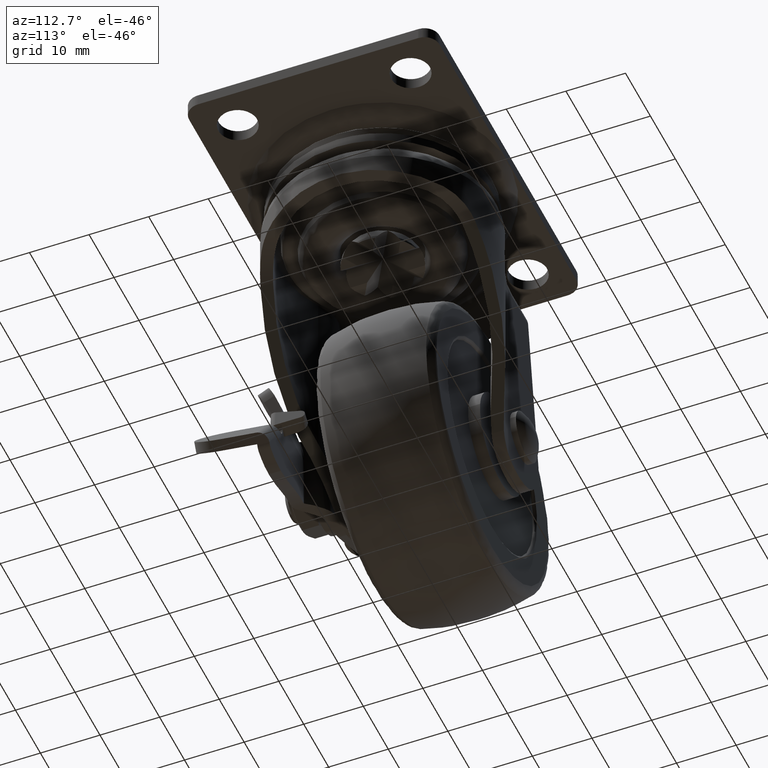
[diagram: clean part render]
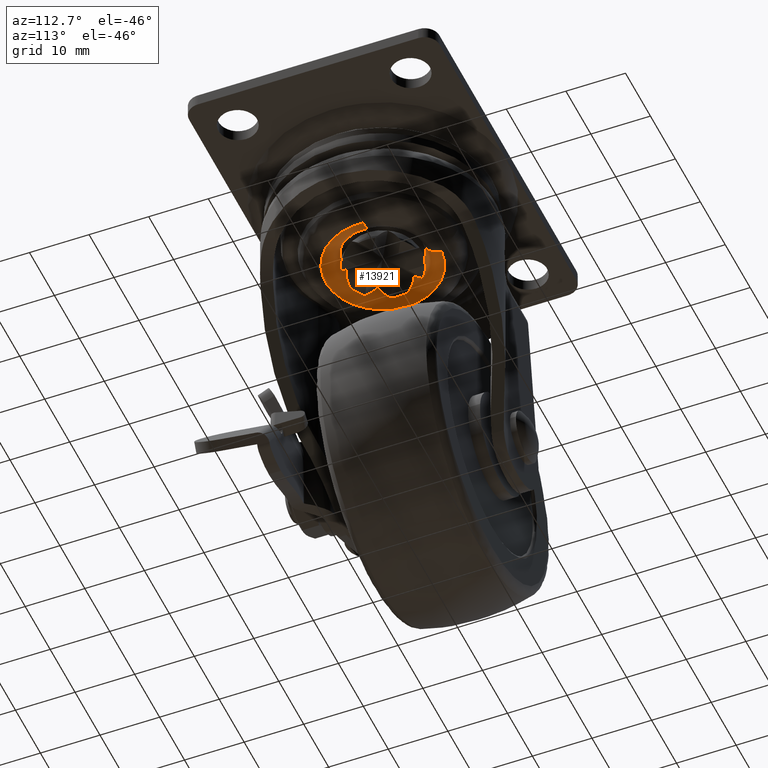
[diagram: same view with one face highlighted and labeled with its STEP entity id]
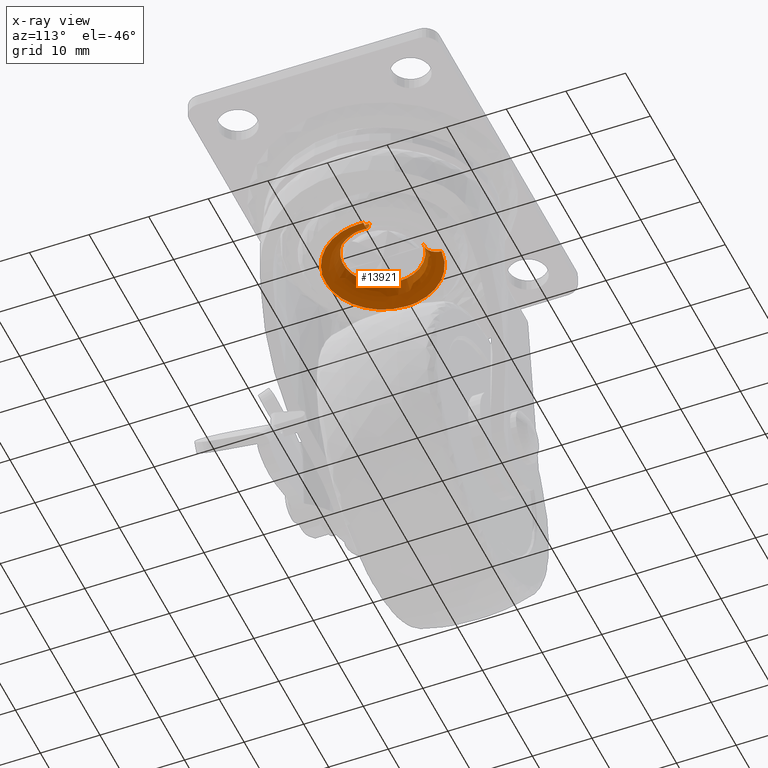
[diagram: x-ray of the same camera — body ghosted, the highlighted face saturated]
A machine part, auxiliary view. The second image highlights one B-rep face of the part: STEP entity #13921.
The next image is the same camera in x-ray: the body ghosted, the highlighted face saturated — about 0% of this face is hidden behind the body in this view.
In plain terms, the highlighted face is a freeform B-spline surface patch.
Its self-contained STEP definition (entity closure, byte-faithful):
#13766=CARTESIAN_POINT('',(-0.496517803032259,6.572788305059166,-13.589644279661956));
#13767=CARTESIAN_POINT('',(-7.069306108091415,6.076270502026906,-13.589644279661961));
#13768=CARTESIAN_POINT('',(-6.572788305059158,-0.496517803032251,-13.589644279661956));
#13769=CARTESIAN_POINT('',(-6.076270502026900,-7.069306108091407,-13.589644279661961));
#13770=CARTESIAN_POINT('',(0.496517803032258,-6.572788305059151,-13.589644279661956));
#13771=CARTESIAN_POINT('',(7.069306108091413,-6.076270502026895,-13.589644279661961));
#13772=CARTESIAN_POINT('',(6.572788305059158,0.496517803032267,-13.589644279661956));
#13773=CARTESIAN_POINT('',(-0.498655322272884,6.601084292395013,-16.769530182890353));
#13774=CARTESIAN_POINT('',(-7.099739614667890,6.102428970122131,-16.769530182890360));
#13775=CARTESIAN_POINT('',(-6.601084292395005,-0.498655322272877,-16.769530182890353));
#13776=CARTESIAN_POINT('',(-6.102428970122124,-7.099739614667882,-16.769530182890360));
#13777=CARTESIAN_POINT('',(0.498655322272884,-6.601084292395000,-16.769530182890353));
#13778=CARTESIAN_POINT('',(7.099739614667889,-6.102428970122122,-16.769530182890360));
#13779=CARTESIAN_POINT('',(6.601084292395005,0.498655322272893,-16.769530182890353));
#13780=CARTESIAN_POINT('',(-0.737655435391118,9.764912736849160,-16.556110152361789));
#13781=CARTESIAN_POINT('',(-10.502568172240270,9.027257301458043,-16.556110152361789));
#13782=CARTESIAN_POINT('',(-9.764912736849153,-0.737655435391110,-16.556110152361789));
#13783=CARTESIAN_POINT('',(-9.027257301458036,-10.502568172240263,-16.556110152361789));
#13784=CARTESIAN_POINT('',(0.737655435391117,-9.764912736849146,-16.556110152361789));
#13785=CARTESIAN_POINT('',(10.502568172240267,-9.027257301458034,-16.556110152361789));
#13786=CARTESIAN_POINT('',(9.764912736849153,0.737655435391127,-16.556110152361789));
#13794=(BOUNDED_SURFACE()B_SPLINE_SURFACE(2,2,((#13766,#13773,#13780),(#13767,#13774,#13781),(#13768,#13775,#13782),(#13769,#13776,#13783),(#13770,#13777,#13784),(#13771,#13778,#13785),(#13772,#13779,#13786)),.UNSPECIFIED.,.F.,.F.,.U.)B_SPLINE_SURFACE_WITH_KNOTS((3,2,2,3),(3,3),(0.0,16.225134389055039,32.450268778110072,48.675403167165108),(0.0,5.176506152476254),.UNSPECIFIED.)GEOMETRIC_REPRESENTATION_ITEM()RATIONAL_B_SPLINE_SURFACE(((0.916618933090594,0.627391968906153,0.911934428134809),(0.648147463352337,0.443633115675520,0.644835018131600),(0.916618933090594,0.627391968906153,0.911934428134809),(0.648147463352337,0.443633115675520,0.644835018131600),(0.916618933090594,0.627391968906153,0.911934428134809),(0.648147463352337,0.443633115675520,0.644835018131600),(0.916618933090594,0.627391968906153,0.911934428134809)))REPRESENTATION_ITEM('')SURFACE());
#13795=CARTESIAN_POINT('',(-6.600000000000000,7.105427E-015,-13.789920000000000));
#13796=VERTEX_POINT('',#13795);
#13797=CARTESIAN_POINT('',(-0.497156917135518,6.581248742366316,-13.789920009136640));
#13798=VERTEX_POINT('',#13797);
#13799=CARTESIAN_POINT('',(-6.600000000000000,7.105427E-015,-13.789920000000000));
#13800=CARTESIAN_POINT('',(-6.600000000000000,6.120231269867518,-13.789920000000002));
#13801=CARTESIAN_POINT('',(-0.497156917135518,6.581248742366316,-13.789920009136637));
#13809=(BOUNDED_CURVE()B_SPLINE_CURVE(2,(#13799,#13800,#13801),.UNSPECIFIED.,.F.,.U.)B_SPLINE_CURVE_WITH_KNOTS((3,3),(0.0,0.236870159231110),.UNSPECIFIED.)CURVE()GEOMETRIC_REPRESENTATION_ITEM()RATIONAL_B_SPLINE_CURVE((1.0,0.722489346487781,0.970850634461712))REPRESENTATION_ITEM(''));
#13810=EDGE_CURVE('',#13796,#13798,#13809,.T.);
#13811=ORIENTED_EDGE('',*,*,#13810,.F.);
#13812=CARTESIAN_POINT('',(6.600000000000000,7.105427E-015,-13.789920000000000));
#13813=VERTEX_POINT('',#13812);
#13814=CARTESIAN_POINT('',(6.600000000000000,7.105427E-015,-13.789920000000000));
#13815=CARTESIAN_POINT('',(6.599999999999999,-6.599999999999993,-13.789920000000000));
#13816=CARTESIAN_POINT('',(0.0,-6.599999999999993,-13.789920000000000));
#13817=CARTESIAN_POINT('',(-6.599999999999999,-6.599999999999993,-13.789920000000000));
#13818=CARTESIAN_POINT('',(-6.600000000000000,7.105427E-015,-13.789920000000000));
#13826=(BOUNDED_CURVE()B_SPLINE_CURVE(2,(#13814,#13815,#13816,#13817,#13818),.UNSPECIFIED.,.F.,.U.)B_SPLINE_CURVE_WITH_KNOTS((3,2,3),(0.500000000000000,0.750000000000000,1.0),.UNSPECIFIED.)CURVE()GEOMETRIC_REPRESENTATION_ITEM()RATIONAL_B_SPLINE_CURVE((1.0,0.707106781186548,1.0,0.707106781186548,1.0))REPRESENTATION_ITEM(''));
#13827=EDGE_CURVE('',#13813,#13796,#13826,.T.);
#13828=ORIENTED_EDGE('',*,*,#13827,.F.);
#13829=CARTESIAN_POINT('',(6.581248742365117,0.497156917771249,-13.789920009751921));
#13830=VERTEX_POINT('',#13829);
#13831=CARTESIAN_POINT('',(6.581248742365118,0.497156917771249,-13.789920009751922));
#13832=CARTESIAN_POINT('',(6.600000000000001,0.248932079910502,-13.789919999999999));
#13833=CARTESIAN_POINT('',(6.600000000000000,7.105427E-015,-13.789920000000000));
#13841=(BOUNDED_CURVE()B_SPLINE_CURVE(2,(#13831,#13832,#13833),.UNSPECIFIED.,.F.,.U.)B_SPLINE_CURVE_WITH_KNOTS((3,3),(0.486870159198137,0.500000000000000),.UNSPECIFIED.)CURVE()GEOMETRIC_REPRESENTATION_ITEM()RATIONAL_B_SPLINE_CURVE((0.970850634392566,0.984617434660137,1.0))REPRESENTATION_ITEM(''));
#13842=EDGE_CURVE('',#13830,#13813,#13841,.T.);
#13843=ORIENTED_EDGE('',*,*,#13842,.F.);
#13844=CARTESIAN_POINT('',(9.564147081046988,0.722490702541161,-16.562873999999461));
#13845=VERTEX_POINT('',#13844);
#13846=CARTESIAN_POINT('',(6.581248742365117,0.497156917771249,-13.789920009751924));
#13847=CARTESIAN_POINT('',(6.791117162761307,0.513011372520766,-16.562875188787100));
#13848=CARTESIAN_POINT('',(9.564147081046988,0.722490702541161,-16.562873999999461));
#13856=(BOUNDED_CURVE()B_SPLINE_CURVE(2,(#13846,#13847,#13848),.UNSPECIFIED.,.F.,.U.)B_SPLINE_CURVE_WITH_KNOTS((3,3),(-1.725745202634284,-0.287173203521697),.UNSPECIFIED.)CURVE()GEOMETRIC_REPRESENTATION_ITEM()RATIONAL_B_SPLINE_CURVE((0.891532758182556,0.652265394014907,0.887273752433748))REPRESENTATION_ITEM(''));
#13857=EDGE_CURVE('',#13830,#13845,#13856,.T.);
#13858=ORIENTED_EDGE('',*,*,#13857,.T.);
#13859=CARTESIAN_POINT('',(9.591396014218789,7.105427E-015,-16.562874000000001));
#13860=VERTEX_POINT('',#13859);
#13861=CARTESIAN_POINT('',(9.591396014218789,7.105427E-015,-16.562874000000001));
#13862=CARTESIAN_POINT('',(9.591396656237018,0.361759250228024,-16.562873999999731));
#13863=CARTESIAN_POINT('',(9.564147081046988,0.722490702541161,-16.562873999999461));
#13871=(BOUNDED_CURVE()B_SPLINE_CURVE(2,(#13861,#13862,#13863),.UNSPECIFIED.,.F.,.U.)B_SPLINE_CURVE_WITH_KNOTS((3,3),(0.0,0.013129865559170),.UNSPECIFIED.)CURVE()GEOMETRIC_REPRESENTATION_ITEM()RATIONAL_B_SPLINE_CURVE((1.0,0.984617405655147,0.970850582475888))REPRESENTATION_ITEM(''));
#13872=EDGE_CURVE('',#13860,#13845,#13871,.T.);
#13873=ORIENTED_EDGE('',*,*,#13872,.F.);
#13874=CARTESIAN_POINT('',(-9.591396014218789,7.105427E-015,-16.562874000000001));
#13875=VERTEX_POINT('',#13874);
#13876=CARTESIAN_POINT('',(-9.591396014218789,7.105427E-015,-16.562874000000001));
#13877=CARTESIAN_POINT('',(-9.591396014218789,-9.591396014218782,-16.562874000000004));
#13878=CARTESIAN_POINT('',(0.0,-9.591396014218782,-16.562874000000001));
#13879=CARTESIAN_POINT('',(9.591396014218789,-9.591396014218782,-16.562874000000004));
#13880=CARTESIAN_POINT('',(9.591396014218789,7.105427E-015,-16.562874000000001));
#13888=(BOUNDED_CURVE()B_SPLINE_CURVE(2,(#13876,#13877,#13878,#13879,#13880),.UNSPECIFIED.,.F.,.U.)B_SPLINE_CURVE_WITH_KNOTS((3,2,3),(0.500000000000000,0.750000000000000,1.0),.UNSPECIFIED.)CURVE()GEOMETRIC_REPRESENTATION_ITEM()RATIONAL_B_SPLINE_CURVE((1.0,0.707106781186548,1.0,0.707106781186548,1.0))REPRESENTATION_ITEM(''));
#13889=EDGE_CURVE('',#13875,#13860,#13888,.T.);
#13890=ORIENTED_EDGE('',*,*,#13889,.F.);
#13891=CARTESIAN_POINT('',(-0.722489224011152,9.564145896782462,-16.562874000000011));
#13892=VERTEX_POINT('',#13891);
#13893=CARTESIAN_POINT('',(-0.722489224011152,9.564145896782462,-16.562874000000008));
#13894=CARTESIAN_POINT('',(-9.591396014218789,8.894176029297560,-16.562874000000004));
#13895=CARTESIAN_POINT('',(-9.591396014218789,7.105427E-015,-16.562874000000001));
#13903=(BOUNDED_CURVE()B_SPLINE_CURVE(2,(#13893,#13894,#13895),.UNSPECIFIED.,.F.,.U.)B_SPLINE_CURVE_WITH_KNOTS((3,3),(0.263129840811281,0.500000000000000),.UNSPECIFIED.)CURVE()GEOMETRIC_REPRESENTATION_ITEM()RATIONAL_B_SPLINE_CURVE((0.970850634372817,0.722489346537445,1.0))REPRESENTATION_ITEM(''));
#13904=EDGE_CURVE('',#13892,#13875,#13903,.T.);
#13905=ORIENTED_EDGE('',*,*,#13904,.F.);
#13906=CARTESIAN_POINT('',(-0.497156917135518,6.581248742366316,-13.789920009136637));
#13907=CARTESIAN_POINT('',(-0.513010673354235,6.791117123295120,-16.562873991512589));
#13908=CARTESIAN_POINT('',(-0.722489224011152,9.564145896782462,-16.562874000000008));
#13916=(BOUNDED_CURVE()B_SPLINE_CURVE(2,(#13906,#13907,#13908),.UNSPECIFIED.,.F.,.U.)B_SPLINE_CURVE_WITH_KNOTS((3,3),(-1.725745203070576,-0.287173659805145),.UNSPECIFIED.)CURVE()GEOMETRIC_REPRESENTATION_ITEM()RATIONAL_B_SPLINE_CURVE((0.891532758327686,0.652265469833987,0.887273603354815))REPRESENTATION_ITEM(''));
#13917=EDGE_CURVE('',#13798,#13892,#13916,.T.);
#13918=ORIENTED_EDGE('',*,*,#13917,.F.);
#13919=EDGE_LOOP('',(#13811,#13828,#13843,#13858,#13873,#13890,#13905,#13918));
#13920=FACE_OUTER_BOUND('',#13919,.T.);
#13921=ADVANCED_FACE('',(#13920),#13794,.T.);